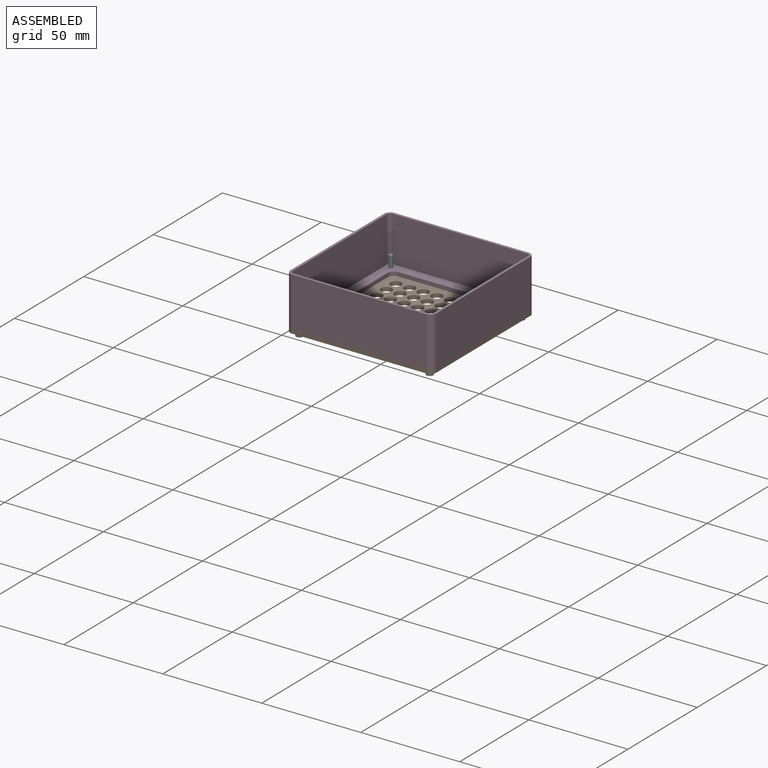
[diagram: assembled view]
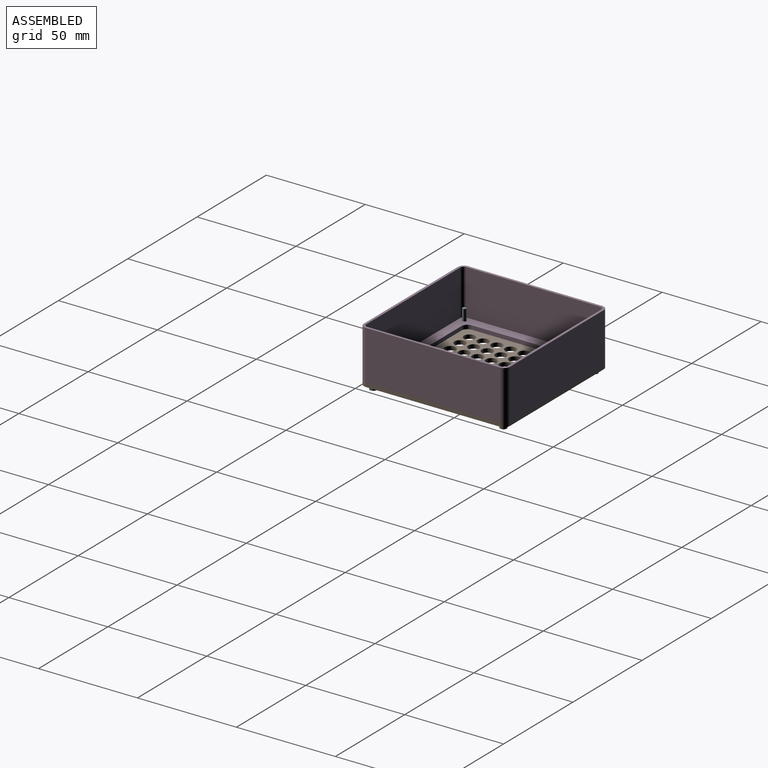
[diagram: assembled view, second angle]
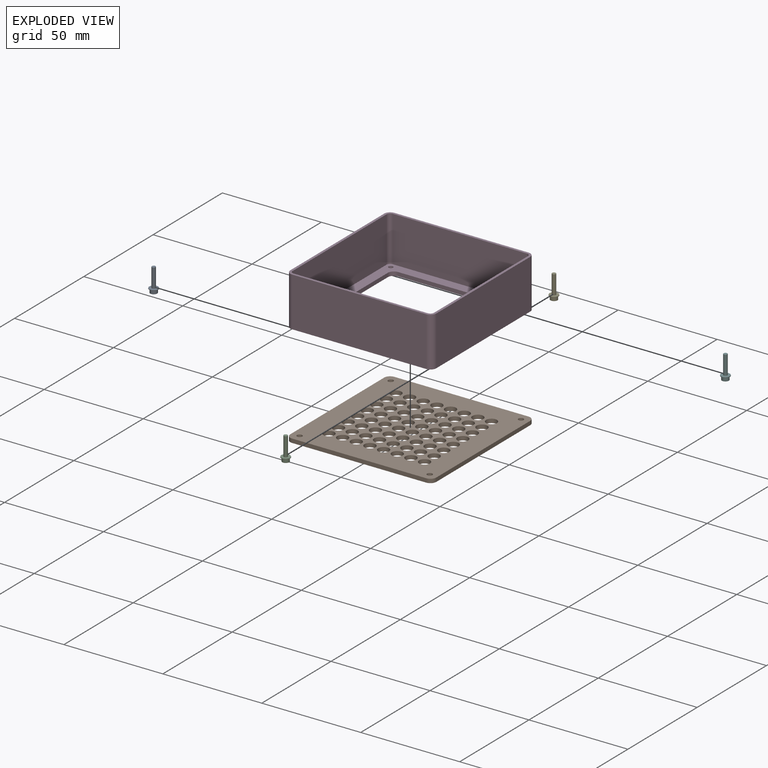
[diagram: exploded view]
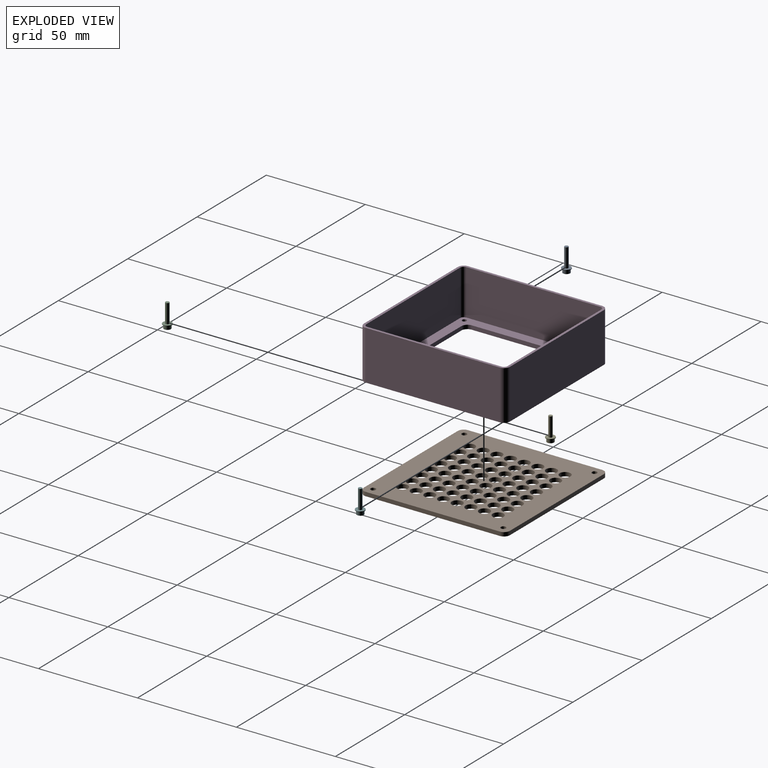
[diagram: exploded view, second angle]
ASSEMBLY  parts=6 mates=5
PART A: 9 faces, bbox 4.5x4.5x11.9 mm
  f0: cylinder r=1.75mm len=3.5mm, axis (0,0,-1), area 20.3mm2, adj f1,f6
  f1: plane 3.5x3.5mm, normal (0,0,-1), area 7.9mm2, adj f0,f2
  f2: cylinder r=0.75mm len=1.5mm, axis (0,0,-1), area 3.3mm2, adj f1,f3
  f3: plane 1.5x1.5mm, normal (0,0,-1), area 1.8mm2, adj f2
  f4: cylinder r=2.25mm len=4.5mm, axis (0,0,-1), area 4.9mm2, adj f5,f6
  f5: plane 4.5x4.5mm, normal (0,0,1), area 13.1mm2, adj f4,f8
  f6: plane 4.5x4.5mm, normal (0,0,-1), area 6.3mm2, adj f0,f4
  f7: plane 1.9x1.9mm, normal (0,0,1), area 2.8mm2, adj f8
  f8: cylinder r=0.95mm len=9.65mm, axis (0,0,-1), area 57.6mm2, adj f5,f7
PART B: 78 faces, bbox 73.8x73.8x2 mm
  f0: plane 67.8x2mm, normal (1,0,0), area 135.6mm2, adj f68,f69,f70,f73
  f1: plane 67.8x2mm, normal (0,1,0), area 135.6mm2, adj f68,f69,f70,f71
  f2: plane 67.8x2mm, normal (-1,0,0), area 135.6mm2, adj f68,f69,f71,f72
  f3: cylinder r=2.75mm len=5.5mm, axis (0,0,-1), area 34.6mm2, adj f68,f69
  f4: cylinder r=2.75mm len=5.5mm, axis (0,0,-1), area 34.6mm2, adj f68,f69
  f5: cylinder r=2.75mm len=5.5mm, axis (0,0,-1), area 34.6mm2, adj f68,f69
  f6: cylinder r=2.75mm len=5.5mm, axis (0,0,-1), area 34.6mm2, adj f68,f69
  f7: cylinder r=2.75mm len=5.5mm, axis (0,0,-1), area 34.6mm2, adj f68,f69
  f8: cylinder r=2.75mm len=5.5mm, axis (0,0,-1), area 34.6mm2, adj f68,f69
  f9: cylinder r=2.75mm len=5.5mm, axis (0,0,-1), area 34.6mm2, adj f68,f69
  f10: cylinder r=2.75mm len=5.5mm, axis (0,0,-1), area 34.6mm2, adj f68,f69
  f11: cylinder r=2.75mm len=5.5mm, axis (0,0,-1), area 34.6mm2, adj f68,f69
  f12: cylinder r=2.75mm len=5.5mm, axis (0,0,-1), area 34.6mm2, adj f68,f69
  f13: cylinder r=2.75mm len=5.5mm, axis (0,0,-1), area 34.6mm2, adj f68,f69
  f14: cylinder r=2.75mm len=5.5mm, axis (0,0,-1), area 34.6mm2, adj f68,f69
  f15: cylinder r=2.75mm len=5.5mm, axis (0,0,-1), area 34.6mm2, adj f68,f69
  f16: cylinder r=2.75mm len=5.5mm, axis (0,0,-1), area 34.6mm2, adj f68,f69
  f17: cylinder r=2.75mm len=5.5mm, axis (0,0,-1), area 34.6mm2, adj f68,f69
  f18: cylinder r=2.75mm len=5.5mm, axis (0,0,-1), area 34.6mm2, adj f68,f69
  f19: cylinder r=2.75mm len=5.5mm, axis (0,0,-1), area 34.6mm2, adj f68,f69
  f20: cylinder r=2.75mm len=5.5mm, axis (0,0,-1), area 34.6mm2, adj f68,f69
  f21: cylinder r=2.75mm len=5.5mm, axis (0,0,-1), area 34.6mm2, adj f68,f69
  f22: cylinder r=2.75mm len=5.5mm, axis (0,0,-1), area 34.6mm2, adj f68,f69
  f23: cylinder r=2.75mm len=5.5mm, axis (0,0,-1), area 34.6mm2, adj f68,f69
  f24: cylinder r=2.75mm len=5.5mm, axis (0,0,-1), area 34.6mm2, adj f68,f69
  f25: cylinder r=2.75mm len=5.5mm, axis (0,0,-1), area 34.6mm2, adj f68,f69
  f26: cylinder r=2.75mm len=5.5mm, axis (0,0,-1), area 34.6mm2, adj f68,f69
  f27: cylinder r=2.75mm len=5.5mm, axis (0,0,-1), area 34.6mm2, adj f68,f69
  f28: cylinder r=2.75mm len=5.5mm, axis (0,0,-1), area 34.6mm2, adj f68,f69
  f29: cylinder r=2.75mm len=5.5mm, axis (0,0,-1), area 34.6mm2, adj f68,f69
  f30: cylinder r=2.75mm len=5.5mm, axis (0,0,-1), area 34.6mm2, adj f68,f69
  f31: cylinder r=2.75mm len=5.5mm, axis (0,0,-1), area 34.6mm2, adj f68,f69
  f32: cylinder r=2.75mm len=5.5mm, axis (0,0,-1), area 34.6mm2, adj f68,f69
  f33: cylinder r=2.75mm len=5.5mm, axis (0,0,-1), area 34.6mm2, adj f68,f69
  f34: cylinder r=2.75mm len=5.5mm, axis (0,0,-1), area 34.6mm2, adj f68,f69
  f35: cylinder r=2.75mm len=5.5mm, axis (0,0,-1), area 34.6mm2, adj f68,f69
  f36: cylinder r=2.75mm len=5.5mm, axis (0,0,-1), area 34.6mm2, adj f68,f69
  f37: cylinder r=2.75mm len=5.5mm, axis (0,0,-1), area 34.6mm2, adj f68,f69
  f38: cylinder r=2.75mm len=5.5mm, axis (0,0,-1), area 34.6mm2, adj f68,f69
  f39: cylinder r=2.75mm len=5.5mm, axis (0,0,-1), area 34.6mm2, adj f68,f69
  f40: cylinder r=2.75mm len=5.5mm, axis (0,0,-1), area 34.6mm2, adj f68,f69
  f41: cylinder r=2.75mm len=5.5mm, axis (0,0,-1), area 34.6mm2, adj f68,f69
  f42: cylinder r=2.75mm len=5.5mm, axis (0,0,-1), area 34.6mm2, adj f68,f69
  f43: cylinder r=2.75mm len=5.5mm, axis (0,0,-1), area 34.6mm2, adj f68,f69
  f44: cylinder r=2.75mm len=5.5mm, axis (0,0,-1), area 34.6mm2, adj f68,f69
  f45: cylinder r=2.75mm len=5.5mm, axis (0,0,-1), area 34.6mm2, adj f68,f69
  f46: cylinder r=2.75mm len=5.5mm, axis (0,0,-1), area 34.6mm2, adj f68,f69
  f47: cylinder r=2.75mm len=5.5mm, axis (0,0,-1), area 34.6mm2, adj f68,f69
  f48: cylinder r=2.75mm len=5.5mm, axis (0,0,-1), area 34.6mm2, adj f68,f69
  f49: cylinder r=2.75mm len=5.5mm, axis (0,0,-1), area 34.6mm2, adj f68,f69
  f50: cylinder r=2.75mm len=5.5mm, axis (0,0,-1), area 34.6mm2, adj f68,f69
  f51: cylinder r=2.75mm len=5.5mm, axis (0,0,-1), area 34.6mm2, adj f68,f69
  f52: cylinder r=2.75mm len=5.5mm, axis (0,0,-1), area 34.6mm2, adj f68,f69
  f53: cylinder r=2.75mm len=5.5mm, axis (0,0,-1), area 34.6mm2, adj f68,f69
  f54: cylinder r=2.75mm len=5.5mm, axis (0,0,-1), area 34.6mm2, adj f68,f69
  f55: cylinder r=2.75mm len=5.5mm, axis (0,0,-1), area 34.6mm2, adj f68,f69
  f56: cylinder r=2.75mm len=5.5mm, axis (0,0,-1), area 34.6mm2, adj f68,f69
  f57: cylinder r=2.75mm len=5.5mm, axis (0,0,-1), area 34.6mm2, adj f68,f69
  f58: cylinder r=2.75mm len=5.5mm, axis (0,0,-1), area 34.6mm2, adj f68,f69
  f59: cylinder r=2.75mm len=5.5mm, axis (0,0,-1), area 34.6mm2, adj f68,f69
  f60: cylinder r=2.75mm len=5.5mm, axis (0,0,-1), area 34.6mm2, adj f68,f69
  f61: cylinder r=2.75mm len=5.5mm, axis (0,0,-1), area 34.6mm2, adj f68,f69
  f62: cylinder r=2.75mm len=5.5mm, axis (0,0,-1), area 34.6mm2, adj f68,f69
  f63: cylinder r=2.75mm len=5.5mm, axis (0,0,-1), area 34.6mm2, adj f68,f69
  f64: cylinder r=2.75mm len=5.5mm, axis (0,0,-1), area 34.6mm2, adj f68,f69
  f65: cylinder r=2.75mm len=5.5mm, axis (0,0,-1), area 34.6mm2, adj f68,f69
  f66: plane 67.8x2mm, normal (0,-1,0), area 135.6mm2, adj f68,f69,f72,f73
  f67: cylinder r=2.75mm len=5.5mm, axis (0,0,-1), area 34.6mm2, adj f68,f69
  f68: plane 73.8x73.8mm, normal (0,0,1), area 3896.9mm2, adj f0,f1,f2,f3,f4,f5,f6,f7
  f69: plane 73.8x73.8mm, normal (0,0,-1), area 3896.9mm2, adj f0,f1,f2,f3,f4,f5,f6,f7
  f70: cylinder r=3mm len=3mm, axis (0,0,1), area 9.4mm2, adj f0,f1,f68,f69
  f71: cylinder r=3mm len=3mm, axis (0,0,-1), area 9.4mm2, adj f1,f2,f68,f69
  f72: cylinder r=3mm len=3mm, axis (0,0,1), area 9.4mm2, adj f2,f66,f68,f69
  f73: cylinder r=3mm len=3mm, axis (0,0,-1), area 9.4mm2, adj f0,f66,f68,f69
  f74: cylinder r=1.3mm len=2.6mm, axis (0,0,1), area 16.3mm2, adj f68,f69
  f75: cylinder r=1.3mm len=2.6mm, axis (0,0,1), area 16.3mm2, adj f68,f69
  f76: cylinder r=1.3mm len=2.6mm, axis (0,0,1), area 16.3mm2, adj f68,f69
  f77: cylinder r=1.3mm len=2.6mm, axis (0,0,1), area 16.3mm2, adj f68,f69
PART C: same geometry as A
PART D: 31 faces, bbox 73.8x73.8x25 mm
  f0: plane 67.8x25mm, normal (1,0,0), area 1695mm2, adj f1,f15,f16,f17
  f1: cylinder r=3mm len=25mm, axis (0,0,-1), area 117.8mm2, adj f0,f2,f16,f17
  f2: plane 67.8x25mm, normal (0,1,0), area 1695mm2, adj f1,f3,f16,f17
  f3: cylinder r=3mm len=25mm, axis (0,0,-1), area 117.8mm2, adj f2,f4,f16,f17
  f4: plane 67.8x25mm, normal (-1,0,0), area 1695mm2, adj f3,f5,f16,f17
  f5: cylinder r=3mm len=25mm, axis (0,0,-1), area 117.8mm2, adj f4,f6,f16,f17
  f6: plane 67.8x25mm, normal (0,-1,0), area 1695mm2, adj f5,f15,f16,f17
  f7: cylinder r=1.8mm len=23mm, axis (0,0,-1), area 65mm2, adj f8,f14,f16,f26
  f8: plane 67.8x23mm, normal (0,-1,0), area 1559.4mm2, adj f7,f9,f16,f26
  f9: cylinder r=1.8mm len=23mm, axis (0,0,-1), area 65mm2, adj f8,f10,f16,f26
  f10: plane 67.8x23mm, normal (-1,0,0), area 1559.4mm2, adj f9,f11,f16,f26
  f11: cylinder r=1.8mm len=23mm, axis (0,0,-1), area 65mm2, adj f10,f12,f16,f26
  f12: plane 67.8x23mm, normal (0,1,0), area 1559.4mm2, adj f11,f13,f16,f26
  f13: cylinder r=1.8mm len=23mm, axis (0,0,-1), area 65mm2, adj f12,f14,f16,f26
  f14: plane 67.8x23mm, normal (1,0,0), area 1559.4mm2, adj f7,f13,f16,f26
  f15: cylinder r=3mm len=25mm, axis (0,0,-1), area 117.8mm2, adj f0,f6,f16,f17
  f16: plane 73.8x73.8mm, normal (0,0,1), area 343.5mm2, adj f0,f1,f2,f3,f4,f5,f6,f7
  f17: plane 73.8x73.8mm, normal (0,0,-1), area 1661.3mm2, adj f0,f1,f2,f3,f4,f5,f6,f15
  f18: cylinder r=3mm len=3mm, axis (0,0,-1), area 9.4mm2, adj f17,f19,f25,f26
  f19: plane 55.4x2mm, normal (0,-1,0), area 110.8mm2, adj f17,f18,f20,f26
  f20: cylinder r=3mm len=3mm, axis (0,0,-1), area 9.4mm2, adj f17,f19,f21,f26
  f21: plane 55.4x2mm, normal (-1,0,0), area 110.8mm2, adj f17,f20,f22,f26
  f22: cylinder r=3mm len=3mm, axis (0,0,-1), area 9.4mm2, adj f17,f21,f23,f26
  f23: plane 55.4x2mm, normal (0,1,0), area 110.8mm2, adj f17,f22,f24,f26
  f24: cylinder r=3mm len=3mm, axis (0,0,-1), area 9.4mm2, adj f17,f23,f25,f26
  f25: plane 55.4x2mm, normal (1,0,0), area 110.8mm2, adj f17,f18,f24,f26
  f26: plane 71.4x71.4mm, normal (0,0,1), area 1317.7mm2, adj f7,f8,f9,f10,f11,f12,f13,f14
  f27: cylinder r=1.1mm len=2.2mm, axis (0,0,-1), area 13.8mm2, adj f17,f26
  f28: cylinder r=1.1mm len=2.2mm, axis (0,0,-1), area 13.8mm2, adj f17,f26
  f29: cylinder r=1.1mm len=2.2mm, axis (0,0,-1), area 13.8mm2, adj f17,f26
  f30: cylinder r=1.1mm len=2.2mm, axis (0,0,-1), area 13.8mm2, adj f17,f26
PART E: same geometry as A
PART F: same geometry as A
PLACE A t=(-32.9,-32.9,-2.2)mm
PLACE B at identity
PLACE C t=(32.9,-32.9,-2.2)mm
PLACE D t=(0,0,2)mm
PLACE E t=(32.9,32.9,-2.2)mm
PLACE F t=(-32.9,32.9,-2.2)mm
MATE fastened B.f76 <-> A.f4  axis (0,0,-1) through (-32.9,-32.9,0)mm
MATE fastened E.f8 <-> B.f74  axis (0,0,1) through (32.9,32.9,0)mm
MATE fastened D.f27 <-> B.f76  axis (0,0,-1) through (-32.9,-32.9,2)mm
MATE fastened F.f4 <-> B.f75  axis (0,0,1) through (-32.9,32.9,0)mm
MATE fastened B.f77 <-> C.f4  axis (0,0,-1) through (32.9,-32.9,0)mm
